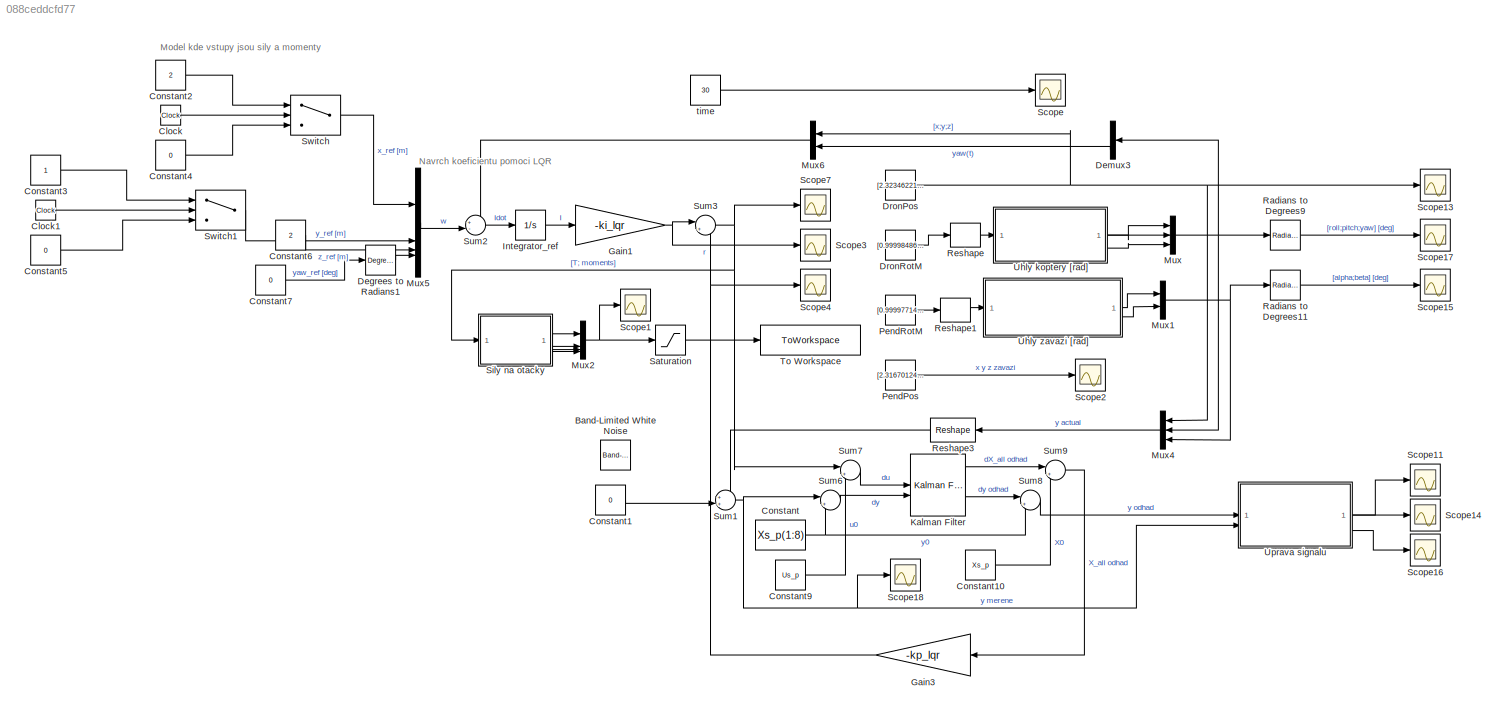
MODEL slx_088ceddcfd77
KIND model
CONFIG AbsTol = auto
CONFIG EnableMultiTasking = off
CONFIG FixedStep = 0.05
CONFIG MaxStep = auto
CONFIG MinStep = auto
CONFIG RelTol = 1e-3
CONFIG SampleTimeConstraint = Unconstrained
CONFIG SolverName = FixedStepAuto
CONFIG StartTime = 0.0
CONFIG StopTime = 30
BLOCK [Reference] Band-Limited White Noise  REF=simulink/Sources/Band-Limited
White Noise
  SourceBlock = simulink/Sources/Band-Limited\nWhite Noise
  SourceType = Band-Limited White Noise.
BLOCK [Clock] Clock
BLOCK [Clock] Clock1
BLOCK [Constant] Constant
  Value = Xs_p(1:8)
BLOCK [Constant] Constant1
  Value = 0
BLOCK [Constant] Constant10
  Value = Xs_p
BLOCK [Constant] Constant2
  Value = 2
BLOCK [Constant] Constant3
BLOCK [Constant] Constant4
  Value = 0
BLOCK [Constant] Constant5
  Value = 0
BLOCK [Constant] Constant6
  Value = 2
BLOCK [Constant] Constant7
  Value = 0
BLOCK [Constant] Constant9
  Value = Us_p
BLOCK [Reference] Degrees to Radians1  REF=simulink_extras/Transformations/Degrees to
Radians
  SourceBlock = simulink_extras/Transformations/Degrees to\nRadians
  SourceType = DegreesToRadians
BLOCK [Demux] Demux3
  Outputs = 3
BLOCK [Constant] DronPos
  SampleTime = -1
  Value = [2.32346221624764;1.16170882076612;2.00002363599593]
BLOCK [Constant] DronRotM
  SampleTime = -1
  Value = [0.999984860177813 -5.50289297469162e-05 0.00550239829327193;3.98544005691727e-05 0.999996196263047 0.00275787437439109;-0.00550252912647141 -0.00275761332587778 0.999981058691592]
BLOCK [Gain] Gain1
  Gain = -ki_lqr
  Multiplication = Matrix(K*u)
BLOCK [Gain] Gain3
  Gain = -kp_lqr
  Multiplication = Matrix(K*u)
BLOCK [Integrator] Integrator_ref
  InitialCondition = [1.74013379756829e-14;-1.44199272323054e-13;-17.1813439246218;-1.04137858173955e-14]
BLOCK [Reference] Kalman Filter  REF=ctrlSharedLib/Kalman Filter
  LibrarySourceBlock = cstblocks/State Estimation/Kalman Filter
  SourceBlock = ctrlSharedLib/Kalman Filter
  SourceType = ctrlKalmanFilter
BLOCK [Mux] Mux
  DisplayOption = bar
  Inputs = 3
BLOCK [Mux] Mux1
  DisplayOption = bar
  Inputs = 2
BLOCK [Mux] Mux2
  DisplayOption = bar
BLOCK [Mux] Mux4
  DisplayOption = bar
  Inputs = 3
BLOCK [Mux] Mux5
  DisplayOption = bar
BLOCK [Mux] Mux6
  DisplayOption = bar
  Inputs = 2
BLOCK [Constant] PendPos
  SampleTime = -1
  Value = [2.31670124908824;1.15831999056533;1.00005223382838]
BLOCK [Constant] PendRotM
  SampleTime = -1
  Value = [0.999977144321402 -1.25651106658396e-05 0.00676096715939648;-1.03469676683034e-05 0.999994257844918 0.0033888302007973;-0.00676097091790106 -0.00338882270229201 0.999971402167551]
BLOCK [Reference] Radians to Degrees11  REF=simulink_extras/Transformations/Radians
to Degrees
  SourceBlock = simulink_extras/Transformations/Radians\nto Degrees
  SourceType = RadiansToDegrees
BLOCK [Reference] Radians to Degrees9  REF=simulink_extras/Transformations/Radians
to Degrees
  SourceBlock = simulink_extras/Transformations/Radians\nto Degrees
  SourceType = RadiansToDegrees
BLOCK [Reshape] Reshape
  OutputDimensionality = Customize
  OutputDimensions = [3,3]
BLOCK [Reshape] Reshape1
  OutputDimensionality = Customize
  OutputDimensions = [3,3]
BLOCK [Reshape] Reshape3
  OutputDimensionality = Customize
  OutputDimensions = [8,1]
BLOCK [Saturate] Saturation
  LowerLimit = 0
  UpperLimit = 4200
BLOCK [Scope] Scope
  Floating = off
  NumInputPorts = 1
  ScopeSpecificationString = Simulink.scopes.TimeScopeBlockCfg('CurrentConfiguration', extmgr.ConfigurationSet(extmgr.Configuration('Core','General UI',true),extmgr.Configuration('Core','Source UI',true),extmgr.Configuration('Sources','WiredSimulink',true,'DataLoggingVariableName','ScopeData1'),extmgr.Configuration('Visuals','Time Domain',true,'SerializedDisplays',{struct('MinYLimReal','-12.5','MaxYLimReal','112.5','YLabelRea...<+1511ch>
BLOCK [Scope] Scope1
  Floating = off
  NumInputPorts = 1
  ScopeSpecificationString = Simulink.scopes.TimeScopeBlockCfg('CurrentConfiguration', extmgr.ConfigurationSet(extmgr.Configuration('Core','General UI',true),extmgr.Configuration('Core','Source UI',true),extmgr.Configuration('Sources','WiredSimulink',true,'DataLoggingVariableName','ScopeData1'),extmgr.Configuration('Visuals','Time Domain',true,'SerializedDisplays',{struct('MinYLimReal','3188.69253','MaxYLimReal','3209.13356',...<+1709ch>
BLOCK [Scope] Scope11
  Floating = off
  NumInputPorts = 1
  ScopeSpecificationString = Simulink.scopes.TimeScopeBlockCfg('CurrentConfiguration', extmgr.ConfigurationSet(extmgr.Configuration('Core','General UI',true),extmgr.Configuration('Core','Source UI',true),extmgr.Configuration('Sources','WiredSimulink',true,'DataLoggingVariableName','ScopeData1'),extmgr.Configuration('Visuals','Time Domain',true,'SerializedDisplays',{struct('MinYLimReal','-0.33078','MaxYLimReal','2.97516','YLab...<+1790ch>
BLOCK [Scope] Scope13
  Floating = off
  NumInputPorts = 1
  ScopeSpecificationString = Simulink.scopes.TimeScopeBlockCfg('CurrentConfiguration', extmgr.ConfigurationSet(extmgr.Configuration('Core','General UI',true,'FigureColor',[1 1 1]),extmgr.Configuration('Core','Source UI',true),extmgr.Configuration('Sources','WiredSimulink',true,'DataLoggingVariableName','ScopeData2'),extmgr.Configuration('Visuals','Time Domain',true,'SerializedDisplays',{struct('MinYLimReal','-0.33018','MaxYLi...<+1879ch>
BLOCK [Scope] Scope14
  Floating = off
  NumInputPorts = 1
  ScopeSpecificationString = Simulink.scopes.TimeScopeBlockCfg('CurrentConfiguration', extmgr.ConfigurationSet(extmgr.Configuration('Core','General UI',true),extmgr.Configuration('Core','Source UI',true),extmgr.Configuration('Sources','WiredSimulink',true,'DataLoggingVariableName','ScopeData3'),extmgr.Configuration('Visuals','Time Domain',true,'SerializedDisplays',{struct('MinYLimReal','-3.52652','MaxYLimReal','6.0912','YLabe...<+1779ch>
BLOCK [Scope] Scope15
  Floating = off
  NumInputPorts = 1
  ScopeSpecificationString = Simulink.scopes.TimeScopeBlockCfg('CurrentConfiguration', extmgr.ConfigurationSet(extmgr.Configuration('Core','General UI',true,'FigureColor',[1 1 1]),extmgr.Configuration('Core','Source UI',true),extmgr.Configuration('Sources','WiredSimulink',true,'DataLoggingVariableName','ScopeData4'),extmgr.Configuration('Visuals','Time Domain',true,'SerializedDisplays',{struct('MinYLimReal','-1.51393','MaxYLi...<+1887ch>
BLOCK [Scope] Scope16
  Floating = off
  NumInputPorts = 1
  ScopeSpecificationString = Simulink.scopes.TimeScopeBlockCfg('CurrentConfiguration', extmgr.ConfigurationSet(extmgr.Configuration('Core','General UI',true),extmgr.Configuration('Core','Source UI',true),extmgr.Configuration('Sources','WiredSimulink',true,'DataLoggingVariableName','ScopeData5'),extmgr.Configuration('Visuals','Time Domain',true,'SerializedDisplays',{struct('MinYLimReal','-2.21614','MaxYLimReal','1.33037','YLab...<+1672ch>
BLOCK [Scope] Scope17
  Floating = off
  NumInputPorts = 1
  ScopeSpecificationString = Simulink.scopes.TimeScopeBlockCfg('CurrentConfiguration', extmgr.ConfigurationSet(extmgr.Configuration('Core','General UI',true,'FigureColor',[1 1 1]),extmgr.Configuration('Core','Source UI',true),extmgr.Configuration('Sources','WiredSimulink',true,'DataLoggingVariableName','ScopeData6'),extmgr.Configuration('Visuals','Time Domain',true,'SerializedDisplays',{struct('MinYLimReal','-1.04529','MaxYLi...<+1924ch>
BLOCK [Scope] Scope18
  Floating = off
  NumInputPorts = 1
  ScopeSpecificationString = Simulink.scopes.TimeScopeBlockCfg('CurrentConfiguration', extmgr.ConfigurationSet(extmgr.Configuration('Core','General UI',true),extmgr.Configuration('Core','Source UI',true),extmgr.Configuration('Sources','WiredSimulink',true,'DataLoggingVariableName','ScopeData1'),extmgr.Configuration('Visuals','Time Domain',true,'SerializedDisplays',{struct('MinYLimReal','-11.22065','MaxYLimReal','3.49149','YLa...<+1626ch>
BLOCK [Scope] Scope2
  Floating = off
  NumInputPorts = 1
  ScopeSpecificationString = Simulink.scopes.TimeScopeBlockCfg('CurrentConfiguration', extmgr.ConfigurationSet(extmgr.Configuration('Core','General UI',true),extmgr.Configuration('Core','Source UI',true),extmgr.Configuration('Sources','WiredSimulink',true,'DataLoggingVariableName','ScopeData2'),extmgr.Configuration('Visuals','Time Domain',true,'SerializedDisplays',{struct('MinYLimReal','-0.125','MaxYLimReal','1.125','YLabelRe...<+1989ch>
BLOCK [Scope] Scope3
  Floating = off
  NumInputPorts = 1
  ScopeSpecificationString = Simulink.scopes.TimeScopeBlockCfg('CurrentConfiguration', extmgr.ConfigurationSet(extmgr.Configuration('Core','General UI',true),extmgr.Configuration('Core','Source UI',true),extmgr.Configuration('Sources','WiredSimulink',true,'DataLoggingVariableName','ScopeData1'),extmgr.Configuration('Visuals','Time Domain',true,'SerializedDisplays',{struct('MinYLimReal','-6.79176','MaxYLimReal','61.12585','YLa...<+1635ch>
BLOCK [Scope] Scope4
  Floating = off
  NumInputPorts = 1
  ScopeSpecificationString = Simulink.scopes.TimeScopeBlockCfg('CurrentConfiguration', extmgr.ConfigurationSet(extmgr.Configuration('Core','General UI',true),extmgr.Configuration('Core','Source UI',true),extmgr.Configuration('Sources','WiredSimulink',true,'DataLoggingVariableName','ScopeData1'),extmgr.Configuration('Visuals','Time Domain',true,'SerializedDisplays',{struct('MinYLimReal','-81.15421','MaxYLimReal','9.01713','YLa...<+1533ch>
BLOCK [Scope] Scope7
  Floating = off
  NumInputPorts = 1
  ScopeSpecificationString = Simulink.scopes.TimeScopeBlockCfg('CurrentConfiguration', extmgr.ConfigurationSet(extmgr.Configuration('Core','General UI',true),extmgr.Configuration('Core','Source UI',true),extmgr.Configuration('Sources','WiredSimulink',true,'DataLoggingVariableName','ScopeData7'),extmgr.Configuration('Visuals','Time Domain',true,'SerializedDisplays',{struct('MinYLimReal','-3.69085','MaxYLimReal','33.11659','YLa...<+1793ch>
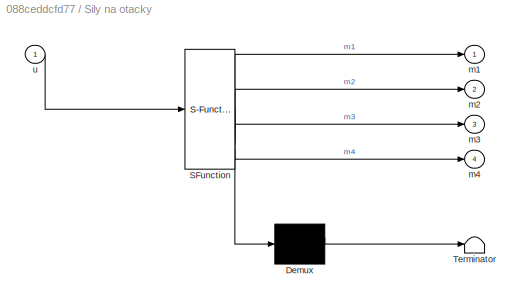
BLOCK [SubSystem] Sily na otacky
  ErrorFcn = Stateflow.Translate.translate
  PermitHierarchicalResolution = ExplicitOnly
  SFBlockType = MATLAB Function
  TreatAsAtomicUnit = on
BLOCK [Demux] Sily na otacky/ Demux 
  Outputs = 1
BLOCK [S-Function] Sily na otacky/ SFunction 
  EnableBusSupport = on
  FunctionName = sf_sfun
  Parameters = b_moment,k_thrust,l
  PortCounts = [1 5]
  SFcnIsStateOwnerBlock = off
  SFunctionDeploymentMode = off
  Tag = Stateflow S-Function 2
BLOCK [Terminator] Sily na otacky/ Terminator 
BLOCK [Outport] Sily na otacky/m1
BLOCK [Outport] Sily na otacky/m2
  Port = 2
BLOCK [Outport] Sily na otacky/m3
  Port = 3
BLOCK [Outport] Sily na otacky/m4
  Port = 4
BLOCK [Inport] Sily na otacky/u
BLOCK [Sum] Sum1
  Inputs = ++|
BLOCK [Sum] Sum2
  Inputs = +-|
BLOCK [Sum] Sum3
  Inputs = |++
BLOCK [Sum] Sum6
  Inputs = |+-
BLOCK [Sum] Sum7
  Inputs = |+-
BLOCK [Sum] Sum8
  Inputs = |++
BLOCK [Sum] Sum9
  Inputs = |++
BLOCK [Switch] Switch
  Criteria = u2 > Threshold
  InputSameDT = off
  SaturateOnIntegerOverflow = off
  Threshold = 5
BLOCK [Switch] Switch1
  Criteria = u2 > Threshold
  InputSameDT = off
  SaturateOnIntegerOverflow = off
  Threshold = 5
BLOCK [ToWorkspace] To Workspace
  FixptAsFi = on
  MaxDataPoints = inf
  SampleTime = -1
  VariableName = Rotor_RPS_square
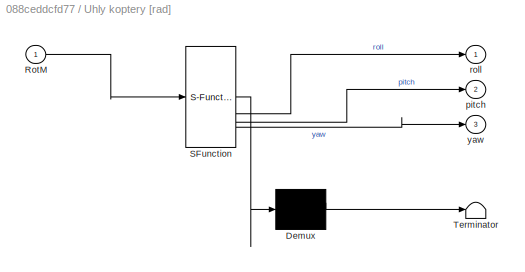
BLOCK [SubSystem] Uhly koptery [rad]
  ErrorFcn = Stateflow.Translate.translate
  PermitHierarchicalResolution = ExplicitOnly
  SFBlockType = MATLAB Function
  TreatAsAtomicUnit = on
BLOCK [Demux] Uhly koptery [rad]/ Demux 
  Outputs = 1
BLOCK [S-Function] Uhly koptery [rad]/ SFunction 
  EnableBusSupport = on
  FunctionName = sf_sfun
  PortCounts = [1 4]
  SFcnIsStateOwnerBlock = off
  SFunctionDeploymentMode = off
  Tag = Stateflow S-Function 3
BLOCK [Terminator] Uhly koptery [rad]/ Terminator 
BLOCK [Inport] Uhly koptery [rad]/RotM
BLOCK [Outport] Uhly koptery [rad]/pitch
  Port = 2
BLOCK [Outport] Uhly koptery [rad]/roll
BLOCK [Outport] Uhly koptery [rad]/yaw
  Port = 3
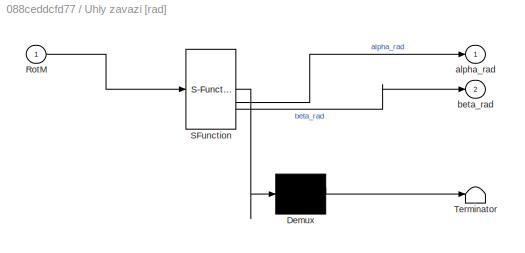
BLOCK [SubSystem] Uhly zavazi [rad]
  ErrorFcn = Stateflow.Translate.translate
  PermitHierarchicalResolution = ExplicitOnly
  SFBlockType = MATLAB Function
  TreatAsAtomicUnit = on
BLOCK [Demux] Uhly zavazi [rad]/ Demux 
  Outputs = 1
BLOCK [S-Function] Uhly zavazi [rad]/ SFunction 
  EnableBusSupport = on
  FunctionName = sf_sfun
  PortCounts = [1 3]
  SFcnIsStateOwnerBlock = off
  SFunctionDeploymentMode = off
  Tag = Stateflow S-Function 1
BLOCK [Terminator] Uhly zavazi [rad]/ Terminator 
BLOCK [Inport] Uhly zavazi [rad]/RotM
BLOCK [Outport] Uhly zavazi [rad]/alpha_rad
BLOCK [Outport] Uhly zavazi [rad]/beta_rad
  Port = 2
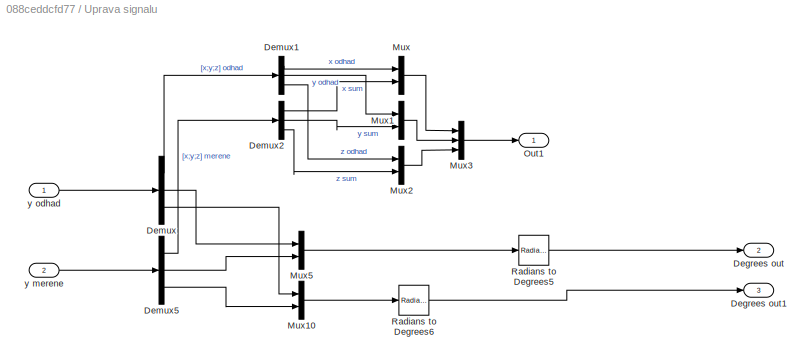
BLOCK [SubSystem] Uprava signalu
BLOCK [Outport] Uprava signalu/Degrees out
  Port = 2
BLOCK [Outport] Uprava signalu/Degrees out1
  Port = 3
BLOCK [Demux] Uprava signalu/Demux
  Outputs = 3
BLOCK [Demux] Uprava signalu/Demux1
  Outputs = 3
BLOCK [Demux] Uprava signalu/Demux2
  Outputs = 3
BLOCK [Demux] Uprava signalu/Demux5
  Outputs = 3
BLOCK [Mux] Uprava signalu/Mux
  DisplayOption = bar
  Inputs = 2
BLOCK [Mux] Uprava signalu/Mux1
  DisplayOption = bar
  Inputs = 2
BLOCK [Mux] Uprava signalu/Mux10
  DisplayOption = bar
  Inputs = 2
BLOCK [Mux] Uprava signalu/Mux2
  DisplayOption = bar
  Inputs = 2
BLOCK [Mux] Uprava signalu/Mux3
  DisplayOption = bar
  Inputs = 3
BLOCK [Mux] Uprava signalu/Mux5
  DisplayOption = bar
  Inputs = 2
BLOCK [Outport] Uprava signalu/Out1
BLOCK [Reference] Uprava signalu/Radians to Degrees5  REF=simulink_extras/Transformations/Radians
to Degrees
  SourceBlock = simulink_extras/Transformations/Radians\nto Degrees
  SourceType = RadiansToDegrees
BLOCK [Reference] Uprava signalu/Radians to Degrees6  REF=simulink_extras/Transformations/Radians
to Degrees
  SourceBlock = simulink_extras/Transformations/Radians\nto Degrees
  SourceType = RadiansToDegrees
BLOCK [Inport] Uprava signalu/y merene
  Port = 2
BLOCK [Inport] Uprava signalu/y odhad
BLOCK [Constant] time
  SampleTime = -1
  Value = 30
ANNOTATION (root): Navrch koeficientu pomoci LQR
ANNOTATION (root): Model kde vstupy jsou sily a momenty
LINE Clock1:1 -> Switch1:2
LINE Clock:1 -> Switch:2
LINE Constant10:1 -> Sum9:2
LINE Constant1:1 -> Sum1:2
LINE Constant2:1 -> Switch:1
LINE Constant3:1 -> Switch1:1
LINE Constant4:1 -> Switch:3
LINE Constant5:1 -> Switch1:3
LINE Constant6:1 -> Mux5:3
LINE Constant7:1 -> Degrees to Radians1:1
LINE Constant9:1 -> Sum7:2
NET Constant:1 -> Sum6:2, Sum8:2
LINE Degrees to Radians1:1 -> Mux5:4
LINE Demux3:3 -> Mux6:2
NET DronPos:1 -> Mux4:1, Mux6:1, Scope13:1
LINE DronRotM:1 -> Reshape:1
NET Gain1:1 -> Scope3:1, Sum3:1
NET Gain3:1 -> Scope4:1, Sum3:2
LINE Integrator_ref:1 -> Gain1:1
LINE Kalman Filter:1 -> Sum9:1
LINE Kalman Filter:2 -> Sum8:1
NET Mux1:1 -> Mux4:3, Radians to Degrees11:1
NET Mux2:1 -> Saturation:1, Scope1:1
LINE Mux4:1 -> Reshape3:1
LINE Mux5:1 -> Sum2:2
LINE Mux6:1 -> Sum2:1
NET Mux:1 -> Demux3:1, Mux4:2, Radians to Degrees9:1
LINE PendPos:1 -> Scope2:1
LINE PendRotM:1 -> Reshape1:1
LINE Radians to Degrees11:1 -> Scope15:1
LINE Radians to Degrees9:1 -> Scope17:1
LINE Reshape1:1 -> Uhly zavazi [rad]:1
LINE Reshape3:1 -> Sum1:1
LINE Reshape:1 -> Uhly koptery [rad]:1
LINE Saturation:1 -> To Workspace:1
LINE Sily na otacky:1 -> Mux2:1
LINE Sily na otacky:2 -> Mux2:2
LINE Sily na otacky:3 -> Mux2:3
LINE Sily na otacky:4 -> Mux2:4
NET Sum1:1 -> Scope18:1, Sum6:1, Uprava signalu:2
LINE Sum2:1 -> Integrator_ref:1
NET Sum3:1 -> Scope7:1, Sily na otacky:1, Sum7:1
LINE Sum6:1 -> Kalman Filter:2
LINE Sum7:1 -> Kalman Filter:1
LINE Sum8:1 -> Uprava signalu:1
LINE Sum9:1 -> Gain3:1
LINE Switch1:1 -> Mux5:2
LINE Switch:1 -> Mux5:1
LINE Uhly koptery [rad]:1 -> Mux:1
LINE Uhly koptery [rad]:2 -> Mux:2
LINE Uhly koptery [rad]:3 -> Mux:3
LINE Uhly zavazi [rad]:1 -> Mux1:1
LINE Uhly zavazi [rad]:2 -> Mux1:2
LINE Uprava signalu/Demux1:1 -> Uprava signalu/Mux:1
LINE Uprava signalu/Demux1:2 -> Uprava signalu/Mux1:1
LINE Uprava signalu/Demux1:3 -> Uprava signalu/Mux2:1
LINE Uprava signalu/Demux2:1 -> Uprava signalu/Mux:2
LINE Uprava signalu/Demux2:2 -> Uprava signalu/Mux1:2
LINE Uprava signalu/Demux2:3 -> Uprava signalu/Mux2:2
LINE Uprava signalu/Demux5:1 -> Uprava signalu/Demux2:1
LINE Uprava signalu/Demux5:2 -> Uprava signalu/Mux5:2
LINE Uprava signalu/Demux5:3 -> Uprava signalu/Mux10:2
LINE Uprava signalu/Demux:1 -> Uprava signalu/Demux1:1
LINE Uprava signalu/Demux:2 -> Uprava signalu/Mux5:1
LINE Uprava signalu/Demux:3 -> Uprava signalu/Mux10:1
LINE Uprava signalu/Mux10:1 -> Uprava signalu/Radians to Degrees6:1
LINE Uprava signalu/Mux1:1 -> Uprava signalu/Mux3:2
LINE Uprava signalu/Mux2:1 -> Uprava signalu/Mux3:3
LINE Uprava signalu/Mux3:1 -> Uprava signalu/Out1:1
LINE Uprava signalu/Mux5:1 -> Uprava signalu/Radians to Degrees5:1
LINE Uprava signalu/Mux:1 -> Uprava signalu/Mux3:1
LINE Uprava signalu/Radians to Degrees5:1 -> Uprava signalu/Degrees out:1
LINE Uprava signalu/Radians to Degrees6:1 -> Uprava signalu/Degrees out1:1
LINE Uprava signalu/y merene:1 -> Uprava signalu/Demux5:1
LINE Uprava signalu/y odhad:1 -> Uprava signalu/Demux:1
LINE Uprava signalu:1 -> Scope11:1
LINE Uprava signalu:2 -> Scope14:1
LINE Uprava signalu:3 -> Scope16:1
LINE time:1 -> Scope:1
note: NET lines group one-source signal fan-out (src -> all destinations, sorted); 1:1 wires keep LINE
CHART Uhly zavazi [rad] states=1 transitions=1
  STATE_LABEL 'eML_blk_kernel()'
  STATE_LABEL 'SCRIPT:\nfunction [alpha_rad, beta_rad] = pend_orient(RotM)\n% Расчет углов альфа и бета маятника\n\n% Вектор маятника\nrope_vector = RotM * [0; 0; -1];\n\n% Расчет угла альфа\nrope_vector_xz = rope_vector([1, 3]); % Компоненты x и z\nz_axis = [0; -1];\ncos_alpha = dot(rope_vector_xz, z_axis) / (norm(rope_vector_xz) * norm(z_axis));\ncos_alpha = max(-1, min(1, cos_alpha)); % Ограничиваем в диапазоне [-1, 1]\n...<+530ch>'
CHART Sily na otacky states=1 transitions=1
  STATE_LABEL 'eML_blk_kernel()'
  STATE_LABEL 'SCRIPT:\nfunction [m1, m2, m3, m4]= fcn(u, b_moment, k_thrust, l)\n\nT = u(1);\nTau_phi = u(2);\nTau_theta = u(3);\nTau_psi = u(4);\n\nm1 = ( (Tau_phi*b_moment - Tau_theta*b_moment + l*T*b_moment + l*Tau_psi*k_thrust)/(4*l*b_moment*k_thrust));\nm2 = ( (-Tau_theta*b_moment - Tau_phi*b_moment + l*T*b_moment - l*Tau_psi*k_thrust)/(4*l*b_moment*k_thrust));\nm3 = ( (Tau_theta*b_moment - Tau_phi*b_moment + l*T*b_...<+165ch>'
CHART Uhly koptery [rad] states=1 transitions=1
  STATE_LABEL 'eML_blk_kernel()'
  STATE_LABEL "SCRIPT:\nfunction [roll, pitch, yaw] = quad_attitude(RotM)\n% matice rotace koptery z Python, vuci svetu!!!\n% rotm2eul prevadi na Eulerove uhly\nradians = rotm2eul(RotM, 'ZYX'); % pouzivam poradi ZYX\n\n% roll = kolem x, pitch = kolem y, yaw = kolem z\nyaw = radians(1);\npitch = radians(2);\nroll = radians(3);\nend\n"
CHART  states=0 transitions=0
CHART  states=0 transitions=0
CHART  states=0 transitions=0
